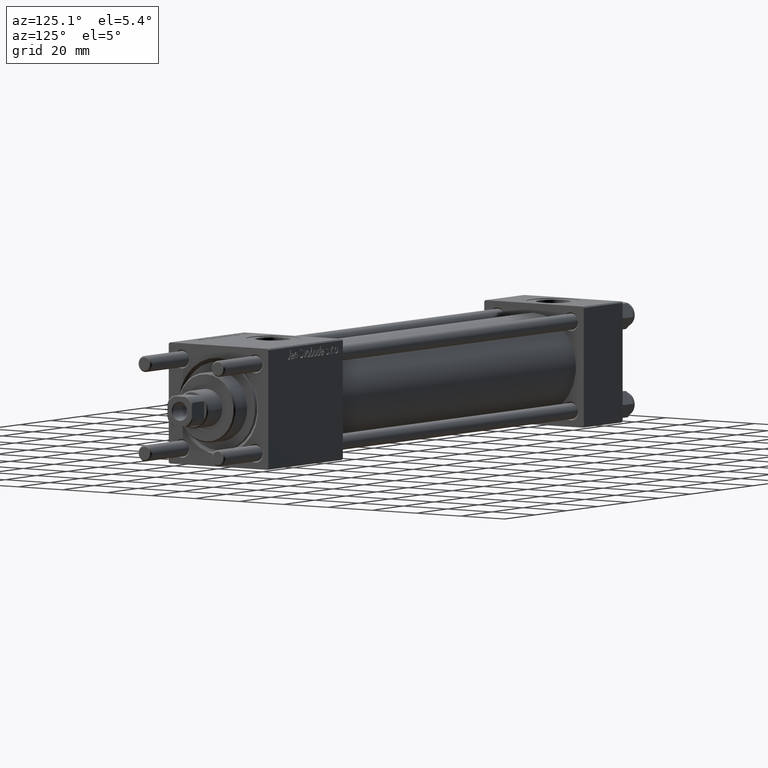
[diagram: clean part render]
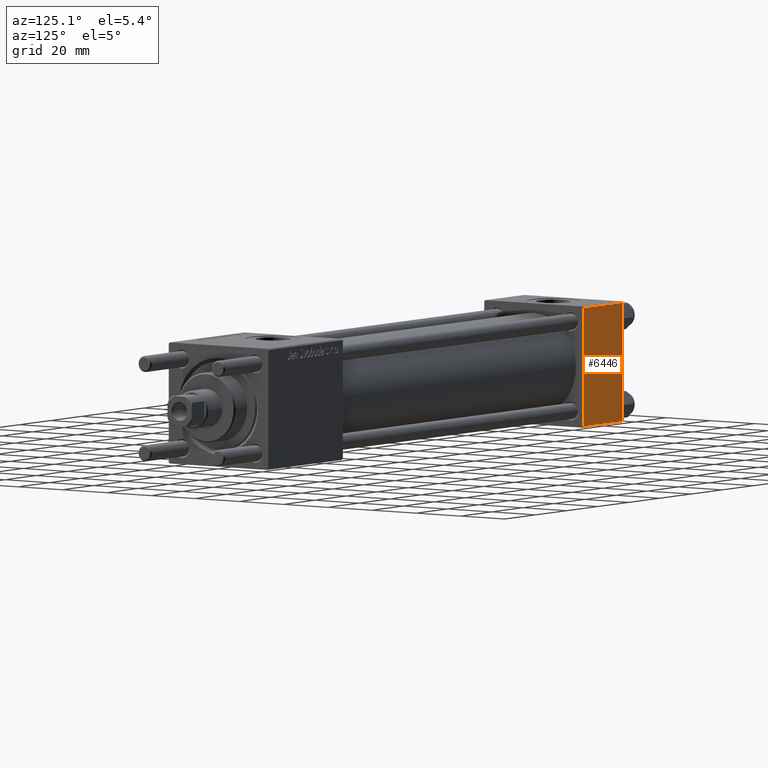
[diagram: same view with one face highlighted and labeled with its STEP entity id]
A machine part, auxiliary view. The second image highlights one B-rep face of the part: STEP entity #6446.
In plain terms, the highlighted planar face has unit normal (0, 1, 0).
Its self-contained STEP definition (entity closure, byte-faithful):
#330 = VERTEX_POINT ( 'NONE', #15411 ) ;
#2827 = VECTOR ( 'NONE', #25289, 1000.000000000000000 ) ;
#6446 = ADVANCED_FACE ( 'NONE', ( #48980 ), #37803, .T. ) ;
#6963 = CARTESIAN_POINT ( 'NONE',  ( 25.00000000000000000, 22.50000000000000000, -21.99999999999996803 ) ) ;
#9784 = ORIENTED_EDGE ( 'NONE', *, *, #52824, .T. ) ;
#10368 = EDGE_CURVE ( 'NONE', #24343, #33303, #36854, .T. ) ;
#10689 = CARTESIAN_POINT ( 'NONE',  ( 0.000000000000000000, 22.50000000000000000, 21.99999999999999645 ) ) ;
#11070 = DIRECTION ( 'NONE',  ( -0.000000000000000000, 1.000000000000000000, 0.000000000000000000 ) ) ;
#11297 = DIRECTION ( 'NONE',  ( 0.000000000000000000, 0.000000000000000000, -1.000000000000000000 ) ) ;
#11874 = LINE ( 'NONE', #50622, #52650 ) ;
#12364 = CARTESIAN_POINT ( 'NONE',  ( 25.00000000000000000, 22.50000000000000000, -21.99999999999998224 ) ) ;
#13235 = EDGE_CURVE ( 'NONE', #24343, #330, #11874, .T. ) ;
#15411 = CARTESIAN_POINT ( 'NONE',  ( 0.000000000000000000, 22.50000000000000000, -21.99999999999996803 ) ) ;
#16572 = VERTEX_POINT ( 'NONE', #6963 ) ;
#20486 = VECTOR ( 'NONE', #23911, 1000.000000000000000 ) ;
#21267 = LINE ( 'NONE', #12364, #2827 ) ;
#23911 = DIRECTION ( 'NONE',  ( 1.000000000000000000, 0.000000000000000000, 0.000000000000000000 ) ) ;
#24343 = VERTEX_POINT ( 'NONE', #10689 ) ;
#25289 = DIRECTION ( 'NONE',  ( -1.000000000000000000, 0.000000000000000000, 0.000000000000000000 ) ) ;
#28564 = EDGE_CURVE ( 'NONE', #33303, #16572, #42669, .T. ) ;
#28594 = DIRECTION ( 'NONE',  ( 0.000000000000000000, -0.000000000000000000, 1.000000000000000000 ) ) ;
#29611 = ORIENTED_EDGE ( 'NONE', *, *, #13235, .F. ) ;
#33303 = VERTEX_POINT ( 'NONE', #46157 ) ;
#35054 = AXIS2_PLACEMENT_3D ( 'NONE', #50403, #11070, #28594 ) ;
#35131 = EDGE_LOOP ( 'NONE', ( #39704, #9784, #29611, #49362 ) ) ;
#36854 = LINE ( 'NONE', #53768, #20486 ) ;
#37803 = PLANE ( 'NONE',  #35054 ) ;
#39704 = ORIENTED_EDGE ( 'NONE', *, *, #28564, .T. ) ;
#42669 = LINE ( 'NONE', #46673, #47484 ) ;
#46157 = CARTESIAN_POINT ( 'NONE',  ( 25.00000000000000000, 22.50000000000000000, 21.99999999999999645 ) ) ;
#46673 = CARTESIAN_POINT ( 'NONE',  ( 25.00000000000000000, 22.50000000000000000, 22.50000000000000355 ) ) ;
#46951 = DIRECTION ( 'NONE',  ( 0.000000000000000000, 0.000000000000000000, -1.000000000000000000 ) ) ;
#47484 = VECTOR ( 'NONE', #46951, 1000.000000000000000 ) ;
#48980 = FACE_OUTER_BOUND ( 'NONE', #35131, .T. ) ;
#49362 = ORIENTED_EDGE ( 'NONE', *, *, #10368, .T. ) ;
#50403 = CARTESIAN_POINT ( 'NONE',  ( 25.00000000000000000, 22.50000000000000000, 22.50000000000000355 ) ) ;
#50622 = CARTESIAN_POINT ( 'NONE',  ( 0.000000000000000000, 22.50000000000000000, 22.50000000000000355 ) ) ;
#52650 = VECTOR ( 'NONE', #11297, 1000.000000000000000 ) ;
#52824 = EDGE_CURVE ( 'NONE', #16572, #330, #21267, .T. ) ;
#53768 = CARTESIAN_POINT ( 'NONE',  ( 25.00000000000000000, 22.50000000000000000, 21.99999999999999645 ) ) ;